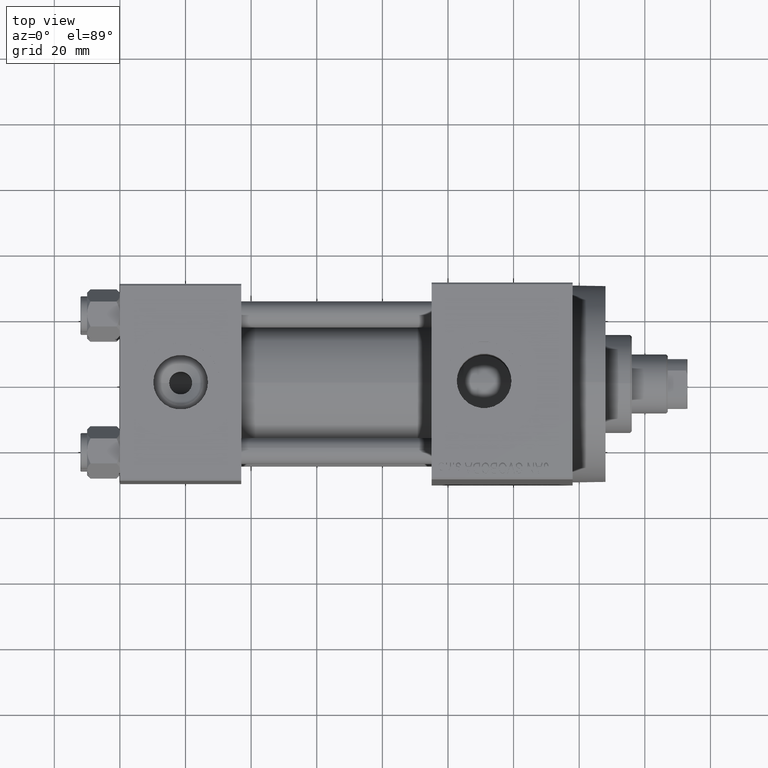
[diagram: clean part render]
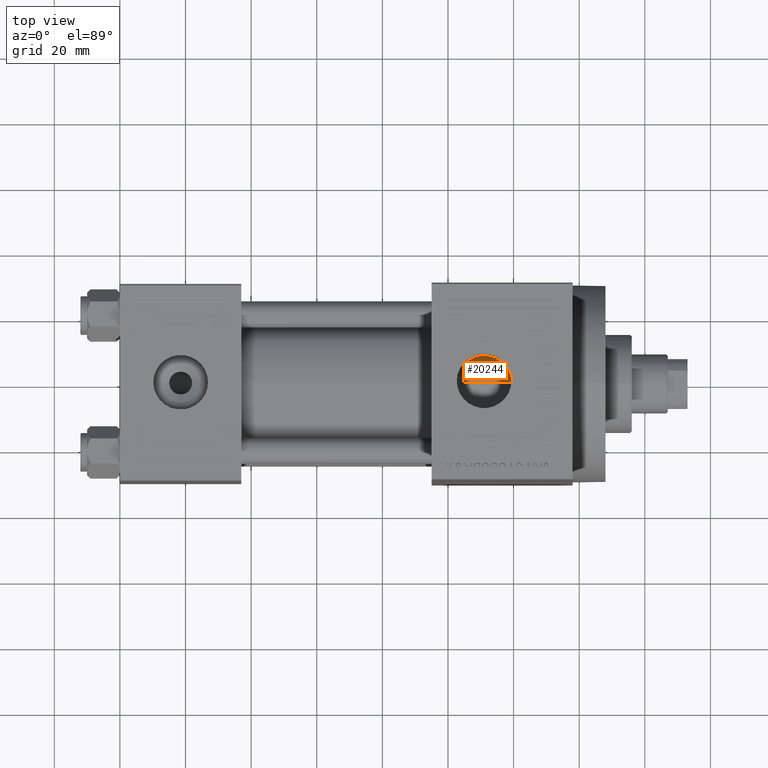
[diagram: same view with one face highlighted and labeled with its STEP entity id]
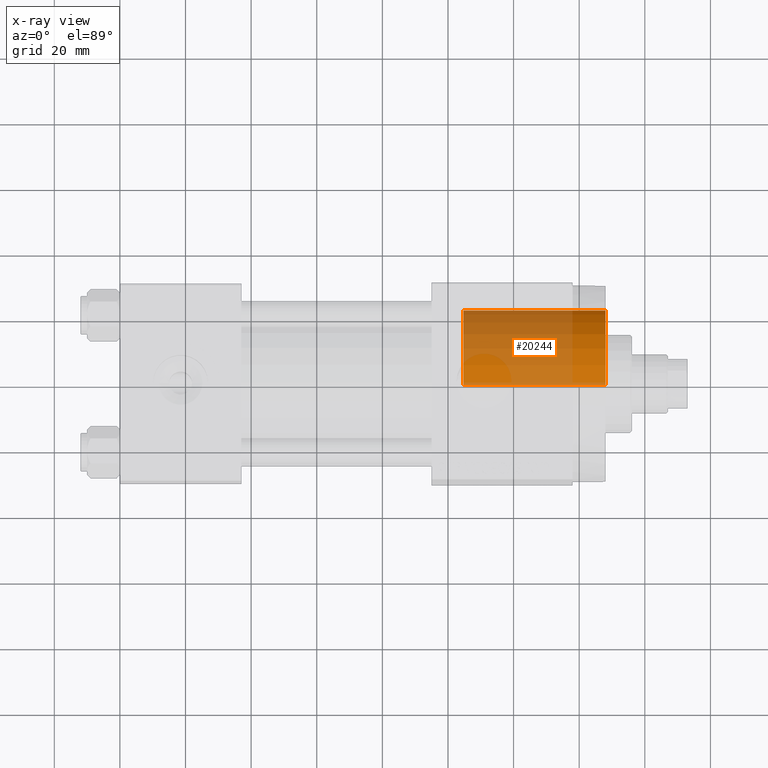
[diagram: x-ray of the same camera — body ghosted, the highlighted face saturated]
A machine part, top view. The second image highlights one B-rep face of the part: STEP entity #20244.
The next image is the same camera in x-ray: the body ghosted, the highlighted face saturated — about 67% of this face is hidden behind the body in this view.
In plain terms, the highlighted cylindrical surface (partial cylindrical patch) has radius 22.5 mm, axis along (-1, 0, 0).
Its self-contained STEP definition (entity closure, byte-faithful):
#196 = VERTEX_POINT ( 'NONE', #19918 ) ;
#241 = AXIS2_PLACEMENT_3D ( 'NONE', #22698, #17993, #30117 ) ;
#783 = CARTESIAN_POINT ( 'NONE',  ( 22.50000000000000355, 2.755455298081545172E-15, 43.25999999999999801 ) ) ;
#866 = EDGE_CURVE ( 'NONE', #11714, #196, #17283, .T. ) ;
#6097 = CARTESIAN_POINT ( 'NONE',  ( 0.000000000000000000, 0.000000000000000000, 0.000000000000000000 ) ) ;
#6268 = CARTESIAN_POINT ( 'NONE',  ( -22.50000000000000355, 0.000000000000000000, 43.25999999999999801 ) ) ;
#7734 = CARTESIAN_POINT ( 'NONE',  ( -22.50000000000000355, 0.000000000000000000, 0.000000000000000000 ) ) ;
#8127 = DIRECTION ( 'NONE',  ( 1.000000000000000000, 0.000000000000000000, 0.000000000000000000 ) ) ;
#8152 = VECTOR ( 'NONE', #34724, 1000.000000000000000 ) ;
#8652 = EDGE_CURVE ( 'NONE', #26040, #11714, #11435, .T. ) ;
#10716 = AXIS2_PLACEMENT_3D ( 'NONE', #6097, #13030, #24249 ) ;
#10824 = FACE_OUTER_BOUND ( 'NONE', #12976, .T. ) ;
#11435 = CIRCLE ( 'NONE', #41966, 22.50000000000000355 ) ;
#11700 = CARTESIAN_POINT ( 'NONE',  ( 0.000000000000000000, 0.000000000000000000, 43.25999999999999801 ) ) ;
#11714 = VERTEX_POINT ( 'NONE', #783 ) ;
#12976 = EDGE_LOOP ( 'NONE', ( #35796, #46500, #35887, #13913 ) ) ;
#13030 = DIRECTION ( 'NONE',  ( 0.000000000000000000, 0.000000000000000000, 1.000000000000000000 ) ) ;
#13913 = ORIENTED_EDGE ( 'NONE', *, *, #29815, .T. ) ;
#17283 = LINE ( 'NONE', #35661, #8152 ) ;
#17993 = DIRECTION ( 'NONE',  ( -0.000000000000000000, -0.000000000000000000, -1.000000000000000000 ) ) ;
#19918 = CARTESIAN_POINT ( 'NONE',  ( 22.50000000000000355, 2.755455298081545172E-15, 0.000000000000000000 ) ) ;
#20244 = ADVANCED_FACE ( 'NONE', ( #10824 ), #47149, .T. ) ;
#20825 = DIRECTION ( 'NONE',  ( -0.000000000000000000, -0.000000000000000000, -1.000000000000000000 ) ) ;
#22698 = CARTESIAN_POINT ( 'NONE',  ( 0.000000000000000000, 0.000000000000000000, 43.25999999999999801 ) ) ;
#24249 = DIRECTION ( 'NONE',  ( 1.000000000000000000, 0.000000000000000000, 0.000000000000000000 ) ) ;
#26040 = VERTEX_POINT ( 'NONE', #36547 ) ;
#26983 = DIRECTION ( 'NONE',  ( 0.000000000000000000, 0.000000000000000000, 1.000000000000000000 ) ) ;
#29815 = EDGE_CURVE ( 'NONE', #38201, #196, #36635, .T. ) ;
#30117 = DIRECTION ( 'NONE',  ( -1.000000000000000000, 0.000000000000000000, 0.000000000000000000 ) ) ;
#33406 = EDGE_CURVE ( 'NONE', #26040, #38201, #38997, .T. ) ;
#34724 = DIRECTION ( 'NONE',  ( -0.000000000000000000, -0.000000000000000000, -1.000000000000000000 ) ) ;
#35661 = CARTESIAN_POINT ( 'NONE',  ( 22.50000000000000355, 2.755455298081545172E-15, 43.25999999999999801 ) ) ;
#35796 = ORIENTED_EDGE ( 'NONE', *, *, #866, .F. ) ;
#35887 = ORIENTED_EDGE ( 'NONE', *, *, #33406, .T. ) ;
#36547 = CARTESIAN_POINT ( 'NONE',  ( -22.50000000000000355, 0.000000000000000000, 43.25999999999999801 ) ) ;
#36635 = CIRCLE ( 'NONE', #10716, 22.50000000000000355 ) ;
#37543 = VECTOR ( 'NONE', #20825, 1000.000000000000000 ) ;
#38201 = VERTEX_POINT ( 'NONE', #7734 ) ;
#38997 = LINE ( 'NONE', #6268, #37543 ) ;
#41966 = AXIS2_PLACEMENT_3D ( 'NONE', #11700, #26983, #8127 ) ;
#46500 = ORIENTED_EDGE ( 'NONE', *, *, #8652, .F. ) ;
#47149 = CYLINDRICAL_SURFACE ( 'NONE', #241, 22.50000000000000355 ) ;